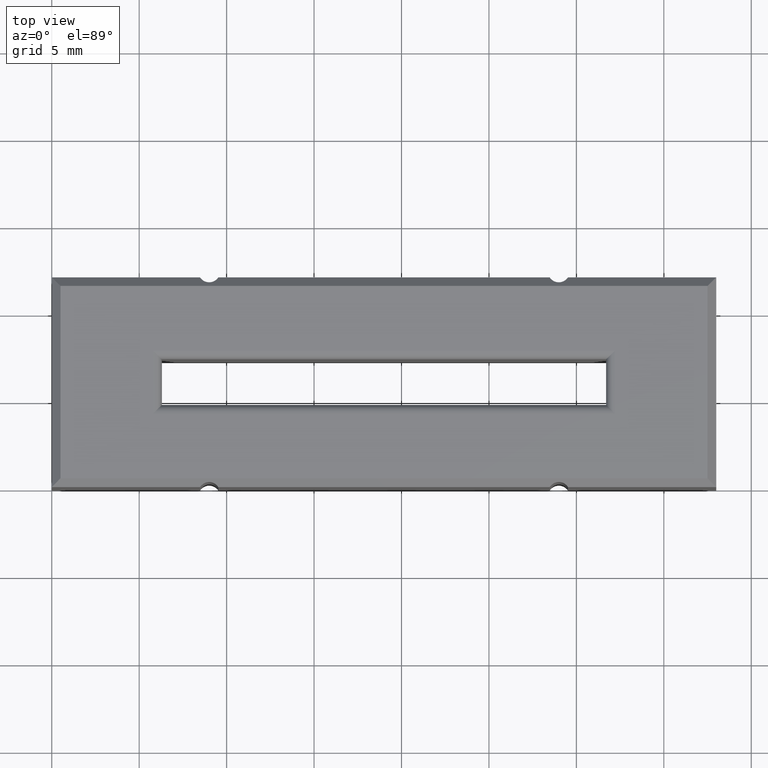
[diagram: clean part render]
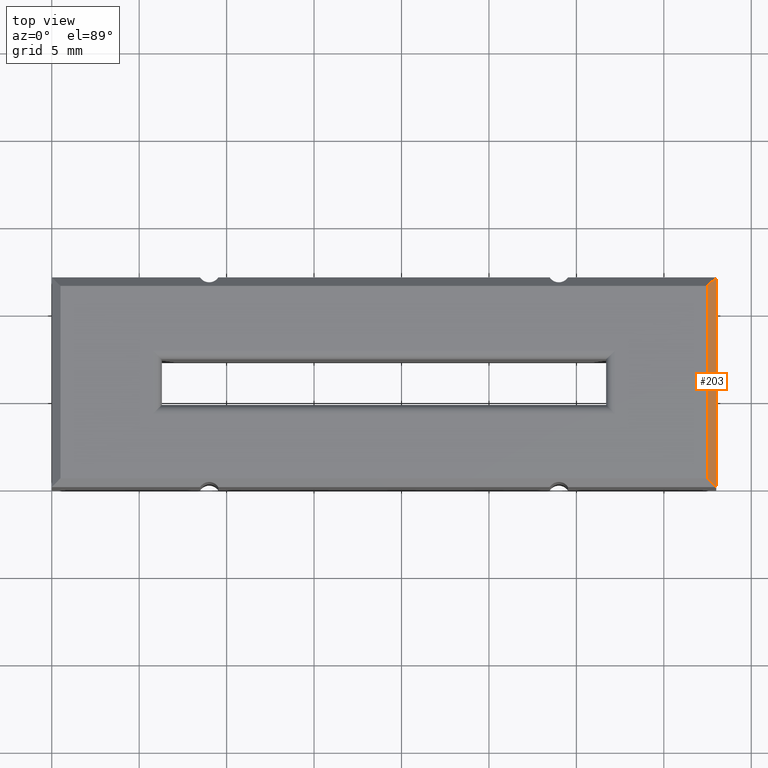
[diagram: same view with one face highlighted and labeled with its STEP entity id]
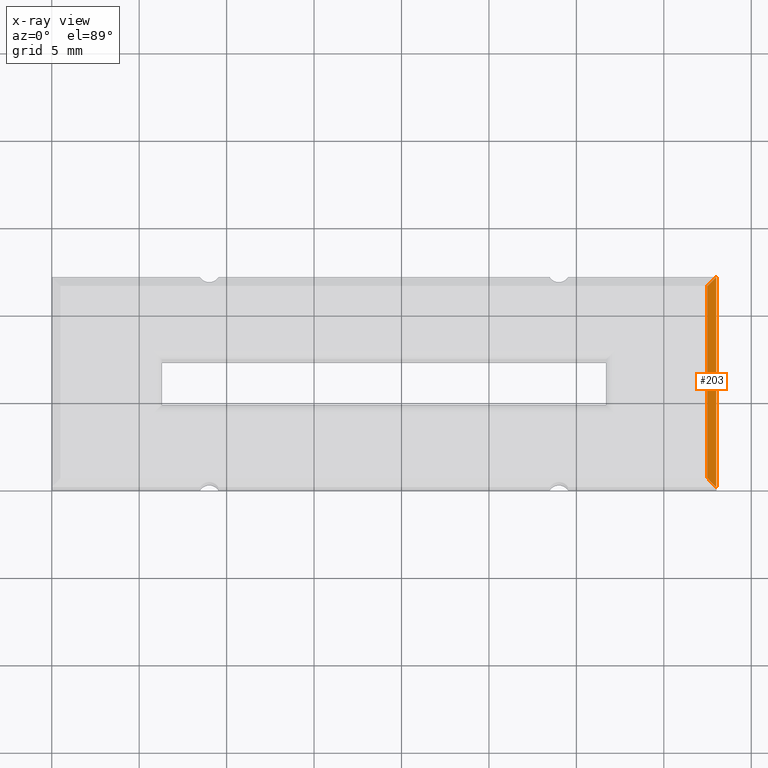
[diagram: x-ray of the same camera — body ghosted, the highlighted face saturated]
A machine part, top view. The second image highlights one B-rep face of the part: STEP entity #203.
The next image is the same camera in x-ray: the body ghosted, the highlighted face saturated — about 0% of this face is hidden behind the body in this view.
In plain terms, the highlighted planar face has unit normal (-0.7071, 0, -0.7071).
Its self-contained STEP definition (entity closure, byte-faithful):
#31 = EDGE_CURVE ( 'NONE', #3143, #1793, #3292, .T. ) ;
#35 = ORIENTED_EDGE ( 'NONE', *, *, #1809, .T. ) ;
#74 = ORIENTED_EDGE ( 'NONE', *, *, #31, .T. ) ;
#203 = ADVANCED_FACE ( 'NONE', ( #522 ), #1536, .F. ) ;
#227 = DIRECTION ( 'NONE',  ( 0.5773502691896243988, -0.5773502691896243988, -0.5773502691896283956 ) ) ;
#279 = AXIS2_PLACEMENT_3D ( 'NONE', #1380, #1395, #2147 ) ;
#399 = EDGE_CURVE ( 'NONE', #482, #1793, #3242, .T. ) ;
#433 = CARTESIAN_POINT ( 'NONE',  ( 38.00000000000000000, 0.000000000000000000, 12.19999999999999574 ) ) ;
#455 = CARTESIAN_POINT ( 'NONE',  ( 38.00000000000000000, 12.00000000000000000, 12.19999999999999574 ) ) ;
#482 = VERTEX_POINT ( 'NONE', #455 ) ;
#522 = FACE_OUTER_BOUND ( 'NONE', #1117, .T. ) ;
#818 = VECTOR ( 'NONE', #227, 1000.000000000000227 ) ;
#951 = CARTESIAN_POINT ( 'NONE',  ( 25.00000000000006040, 12.99999999999994493, 25.20000000000002771 ) ) ;
#1117 = EDGE_LOOP ( 'NONE', ( #74, #2746, #35, #3136 ) ) ;
#1130 = CARTESIAN_POINT ( 'NONE',  ( 37.50000000000000000, 0.5000000000000004441, 12.69999999999999929 ) ) ;
#1269 = LINE ( 'NONE', #2022, #1937 ) ;
#1282 = DIRECTION ( 'NONE',  ( 0.000000000000000000, 1.000000000000000000, 0.000000000000000000 ) ) ;
#1345 = CARTESIAN_POINT ( 'NONE',  ( 25.00000000000006040, -0.9999999999999453770, 25.20000000000002771 ) ) ;
#1379 = CARTESIAN_POINT ( 'NONE',  ( 37.50000000000000000, 11.50000000000000000, 12.69999999999999929 ) ) ;
#1380 = CARTESIAN_POINT ( 'NONE',  ( 37.50000000000000000, 0.000000000000000000, 12.69999999999999929 ) ) ;
#1395 = DIRECTION ( 'NONE',  ( -0.7071067811865500152, 0.000000000000000000, -0.7071067811865451302 ) ) ;
#1409 = VECTOR ( 'NONE', #1623, 1000.000000000000227 ) ;
#1536 = PLANE ( 'NONE',  #279 ) ;
#1623 = DIRECTION ( 'NONE',  ( -0.5773502691896243988, -0.5773502691896243988, 0.5773502691896283956 ) ) ;
#1748 = VECTOR ( 'NONE', #3024, 1000.000000000000000 ) ;
#1793 = VERTEX_POINT ( 'NONE', #2256 ) ;
#1809 = EDGE_CURVE ( 'NONE', #482, #3284, #2383, .T. ) ;
#1937 = VECTOR ( 'NONE', #1282, 1000.000000000000000 ) ;
#2022 = CARTESIAN_POINT ( 'NONE',  ( 37.50000000000000000, 0.000000000000000000, 12.69999999999999929 ) ) ;
#2147 = DIRECTION ( 'NONE',  ( 0.000000000000000000, 1.000000000000000000, 0.000000000000000000 ) ) ;
#2256 = CARTESIAN_POINT ( 'NONE',  ( 38.00000000000000000, 0.000000000000000000, 12.19999999999999574 ) ) ;
#2383 = LINE ( 'NONE', #1345, #1409 ) ;
#2746 = ORIENTED_EDGE ( 'NONE', *, *, #399, .F. ) ;
#2889 = EDGE_CURVE ( 'NONE', #3143, #3284, #1269, .T. ) ;
#3024 = DIRECTION ( 'NONE',  ( 0.000000000000000000, -1.000000000000000000, 0.000000000000000000 ) ) ;
#3136 = ORIENTED_EDGE ( 'NONE', *, *, #2889, .F. ) ;
#3143 = VERTEX_POINT ( 'NONE', #1130 ) ;
#3242 = LINE ( 'NONE', #433, #1748 ) ;
#3284 = VERTEX_POINT ( 'NONE', #1379 ) ;
#3292 = LINE ( 'NONE', #951, #818 ) ;